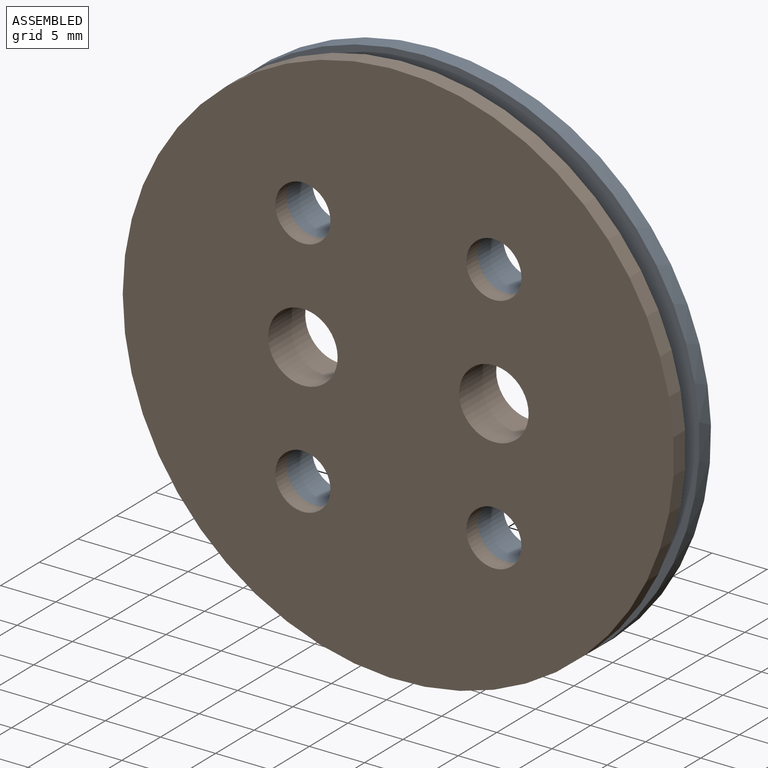
[diagram: assembled view]
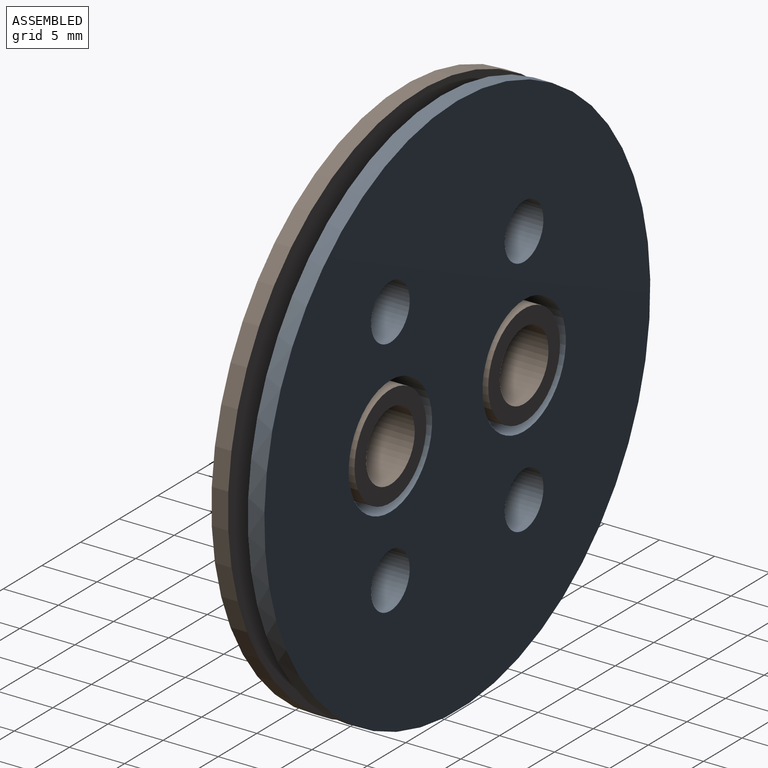
[diagram: assembled view, second angle]
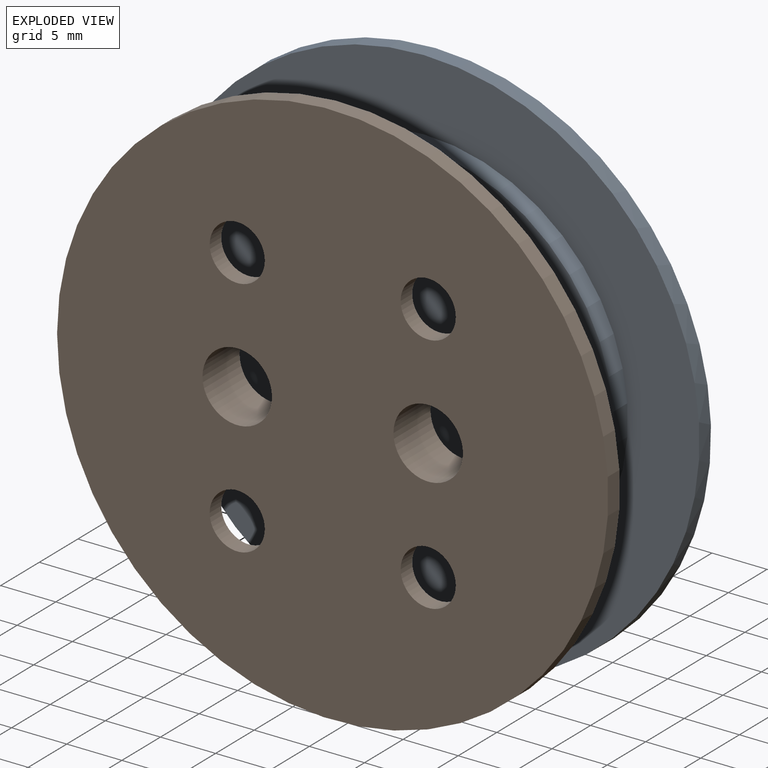
[diagram: exploded view]
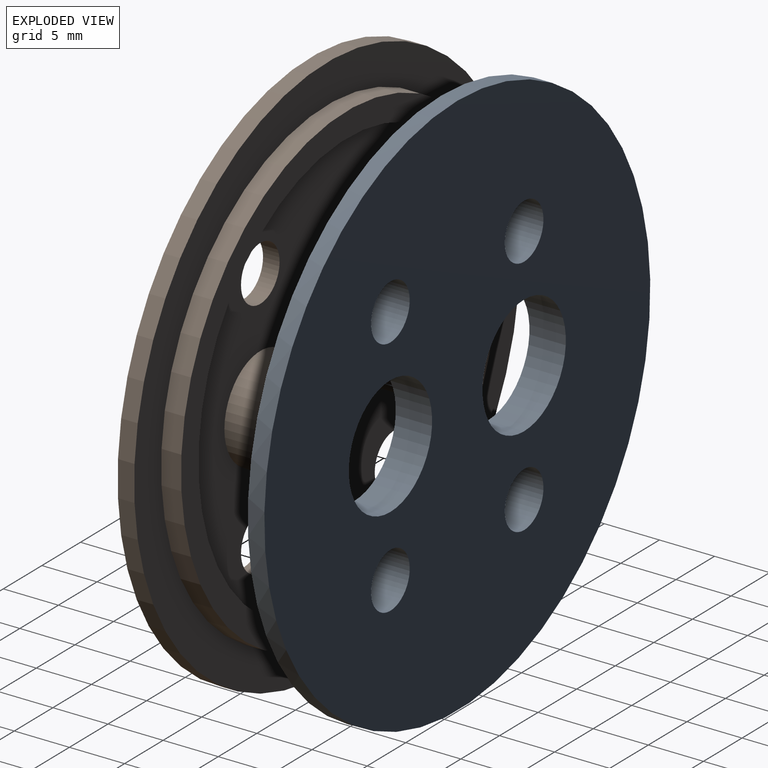
[diagram: exploded view, second angle]
ASSEMBLY  parts=2 mates=3
PART A: 11 faces, bbox 50x3.3x50 mm
  f0: plane 37x37mm, normal (0,-1,0), area 813.5mm2, adj f4,f5,f6,f7,f8,f9,f10
  f1: plane 50x50mm, normal (0,-1,0), area 888.3mm2, adj f3,f8
  f2: plane 50x50mm, normal (0,1,0), area 1701.7mm2, adj f3,f4,f5,f6,f7,f9,f10
  f3: cylinder r=25mm len=50mm, axis (0,1,0), area 235.6mm2, adj f1,f2
  f4: cylinder r=2.5mm len=5mm, axis (0,-1,0), area 51.8mm2, adj f0,f2
  f5: cylinder r=2.5mm len=5mm, axis (0,-1,0), area 51.8mm2, adj f0,f2
  f6: cylinder r=2.5mm len=5mm, axis (0,-1,0), area 51.8mm2, adj f0,f2
  f7: cylinder r=2.5mm len=5mm, axis (0,-1,0), area 51.8mm2, adj f0,f2
  f8: cylinder r=18.5mm len=37mm, axis (0,-1,0), area 209.2mm2, adj f0,f1
  f9: cylinder r=5.4mm len=10.8mm, axis (0,-1,0), area 112mm2, adj f0,f2
  f10: cylinder r=5.4mm len=10.8mm, axis (0,-1,0), area 112mm2, adj f0,f2
PART B: 17 faces, bbox 50x4.8x50 mm
  f0: plane 38.5x38.5mm, normal (0,-1,0), area 949.8mm2, adj f4,f5,f6,f7,f10,f13,f15
  f1: plane 50x50mm, normal (0,1,0), area 1822.6mm2, adj f3,f4,f5,f6,f7,f8,f9
  f2: plane 50x50mm, normal (0,-1,0), area 511.3mm2, adj f3,f11
  f3: cylinder r=25mm len=50mm, axis (0,-1,0), area 235.6mm2, adj f1,f2
  f4: cylinder r=2.5mm len=5mm, axis (0,-1,0), area 23.6mm2, adj f0,f1
  f5: cylinder r=2.5mm len=5mm, axis (0,-1,0), area 23.6mm2, adj f0,f1
  f6: cylinder r=2.5mm len=5mm, axis (0,-1,0), area 23.6mm2, adj f0,f1
  f7: cylinder r=2.5mm len=5mm, axis (0,-1,0), area 23.6mm2, adj f0,f1
  f8: cylinder r=3.15mm len=6.3mm, axis (0,1,0), area 95mm2, adj f1,f14
  f9: cylinder r=3.15mm len=6.3mm, axis (0,1,0), area 95mm2, adj f1,f16
  f10: cylinder r=19.25mm len=38.5mm, axis (0,1,0), area 217.7mm2, adj f0,f12
  f11: cylinder r=21.5mm len=43mm, axis (0,1,0), area 243.2mm2, adj f2,f12
  f12: plane 43x43mm, normal (0,-1,0), area 288mm2, adj f10,f11
  f13: cylinder r=4.65mm len=9.3mm, axis (0,1,0), area 96.4mm2, adj f0,f14
  f14: plane 9.3x9.3mm, normal (0,-1,0), area 36.8mm2, adj f8,f13
  f15: cylinder r=4.65mm len=9.3mm, axis (0,1,0), area 96.4mm2, adj f0,f16
  f16: plane 9.3x9.3mm, normal (0,-1,0), area 36.8mm2, adj f9,f15
PLACE A t=(-14.93,-5.27,4.8)mm fixed
PLACE B rot(axis=(-0.71,0,-0.71),180deg) t=(-14.93,-7.07,4.8)mm
MATE planar B.f4 <-> A.f3  axis (0,1,0) through (-6.27,-7.07,-6.2)mm
MATE cylindrical A.f10 <-> B.f8  axis (0,1,0) through (-23.59,-3.77,4.8)mm
MATE cylindrical A.f8 <-> B.f10  axis (0,-1,0) through (-14.93,-6.17,4.8)mm
